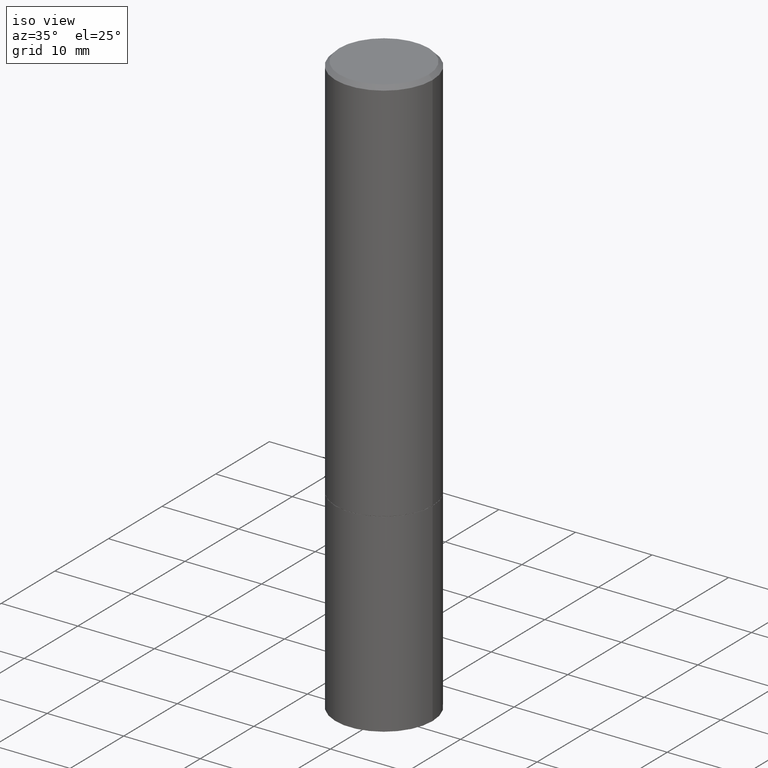
[diagram: clean part render]
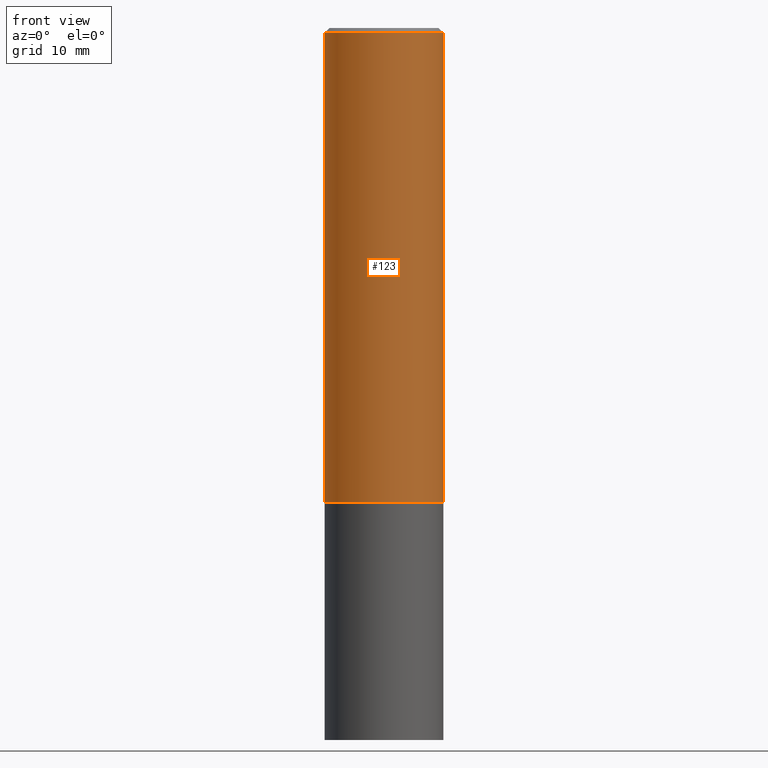
[diagram: tour spotlight — one face highlighted and labeled with its STEP entity id]
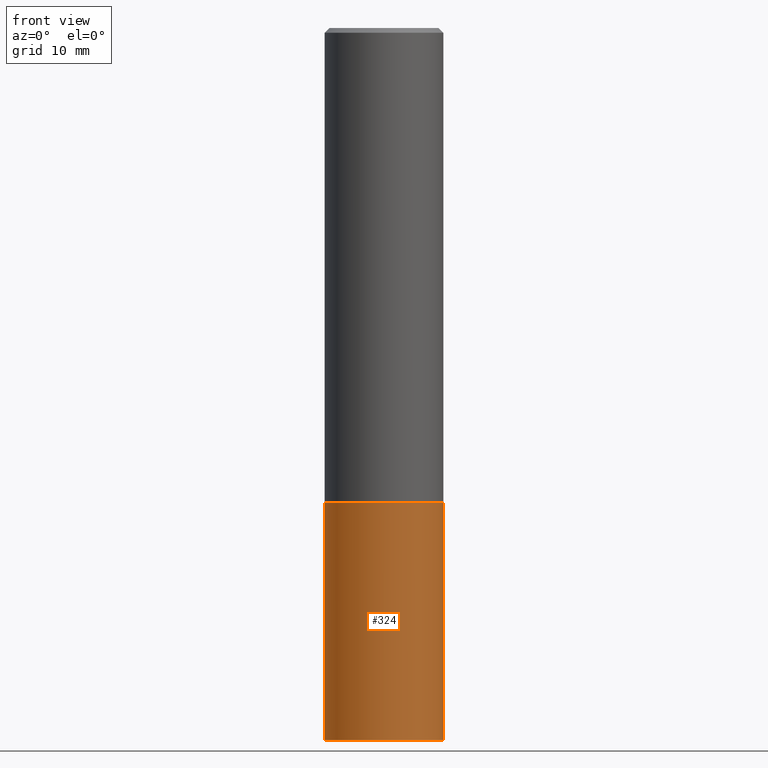
[diagram: tour spotlight — one face highlighted and labeled with its STEP entity id]
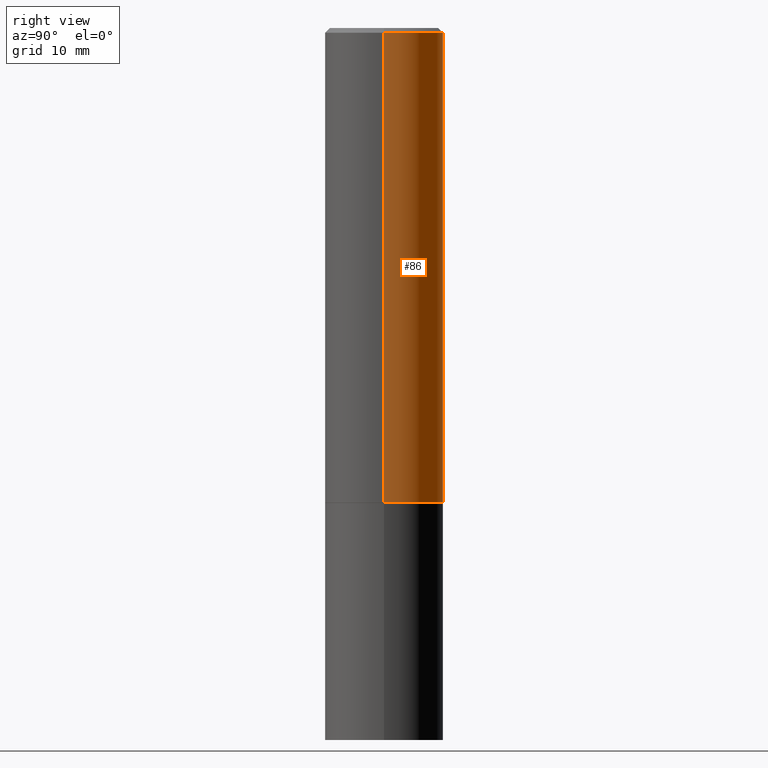
[diagram: tour spotlight — one face highlighted and labeled with its STEP entity id]
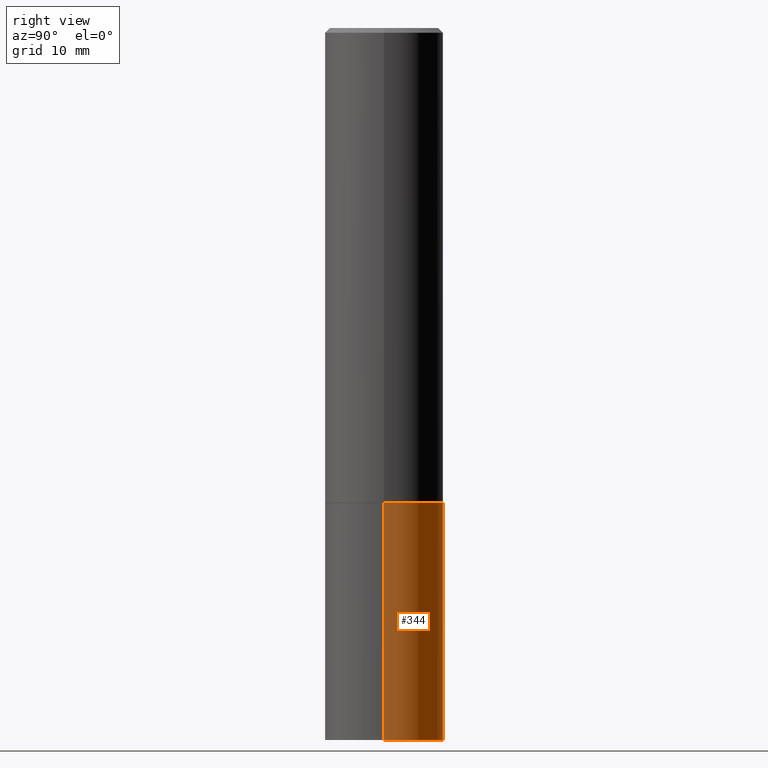
[diagram: tour spotlight — one face highlighted and labeled with its STEP entity id]
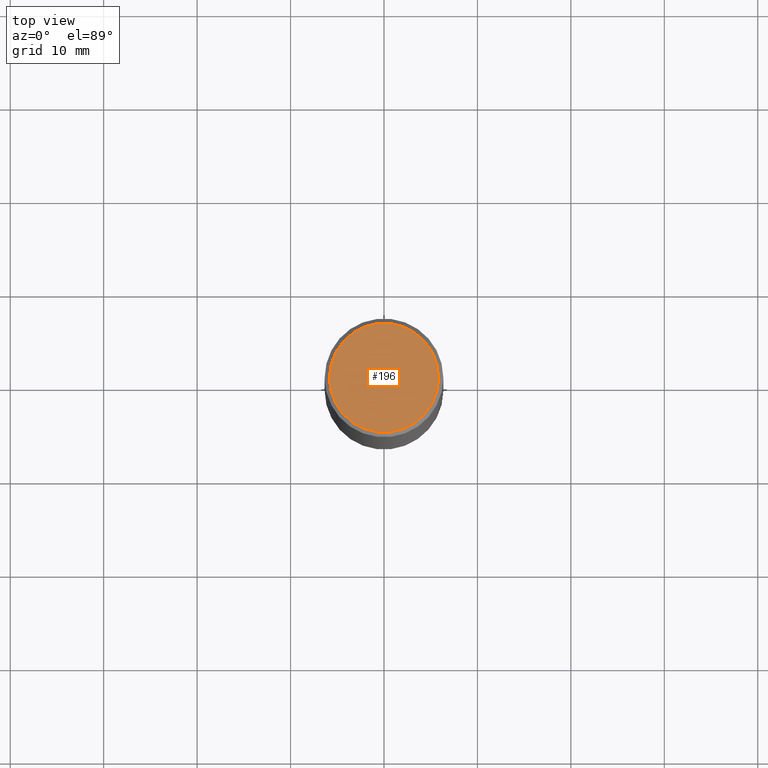
[diagram: tour spotlight — one face highlighted and labeled with its STEP entity id]
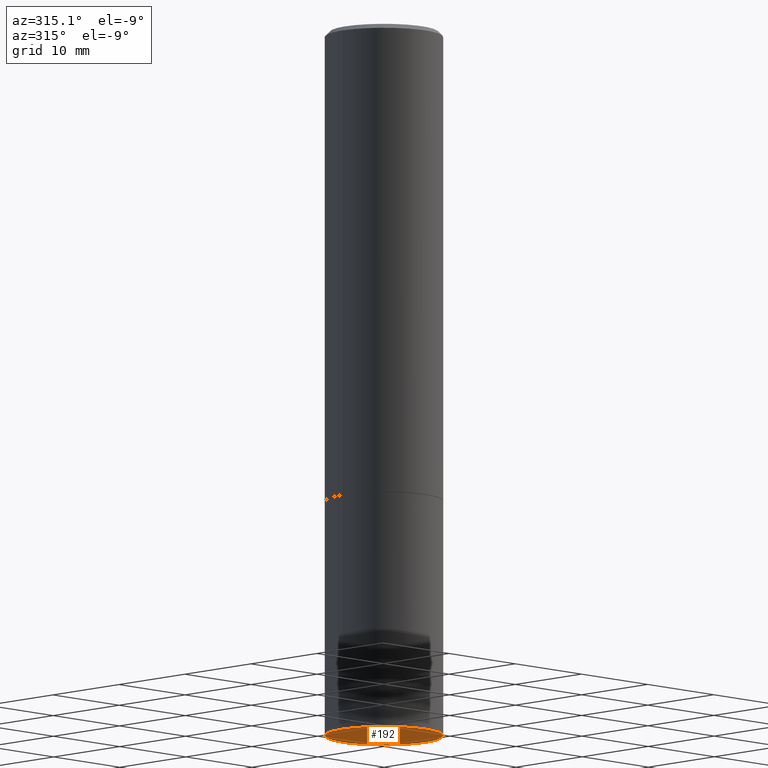
[diagram: tour spotlight — one face highlighted and labeled with its STEP entity id]
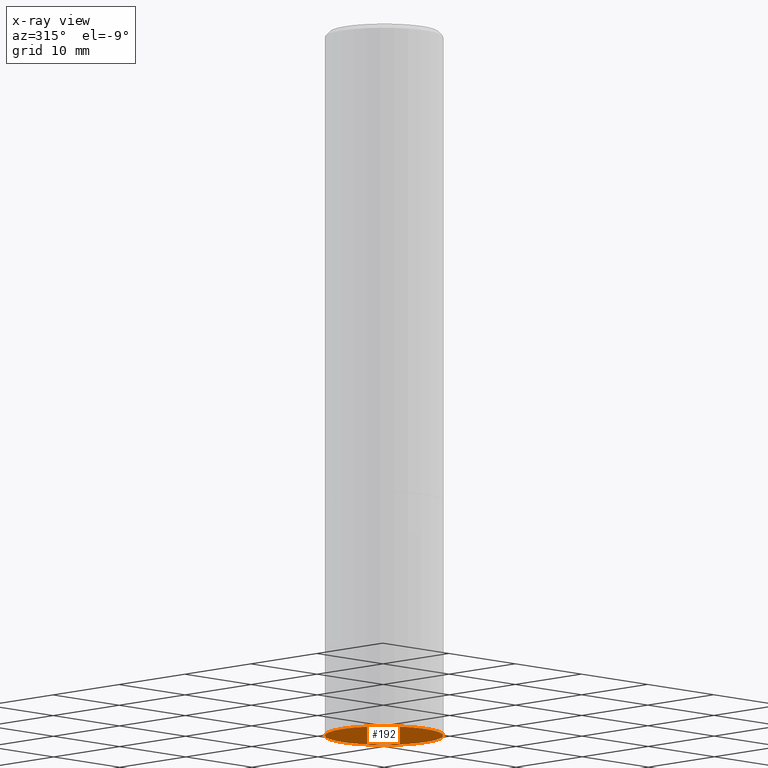
[diagram: x-ray of the same camera — body ghosted, this tour face saturated]
A machine part: a face-by-face anatomy tour. The part has 12 B-rep faces; the first image is the clean iso view, then the 6 largest visible faces are spotlighted one at a time (largest first), each with its STEP entity span.

Face 1 — front view, entity #123. In plain terms, the highlighted cylindrical surface (partial cylindrical patch) has radius 6.35 mm, axis along (-0, 0, 1).
Definition (entity closure, byte-faithful):
#9 = EDGE_CURVE ( 'NONE', #105, #18, #268, .T. ) ;
#14 = ORIENTED_EDGE ( 'NONE', *, *, #143, .F. ) ;
#18 = VERTEX_POINT ( 'NONE', #263 ) ;
#20 = DIRECTION ( 'NONE',  ( -2.445468806185136597E-29, 3.491481338843145583E-15, 1.000000000000000000 ) ) ;
#36 = EDGE_CURVE ( 'NONE', #18, #210, #260, .T. ) ;
#38 = VECTOR ( 'NONE', #364, 39.37007874015748143 ) ;
#44 = CARTESIAN_POINT ( 'NONE',  ( -0.2499999999999998612, 1.776356839400249479E-15, -1.229733772563725745E-29 ) ) ;
#50 = CARTESIAN_POINT ( 'NONE',  ( 4.890937612370287172E-31, -6.982962677686310098E-17, -0.02000000000000005593 ) ) ;
#64 = AXIS2_PLACEMENT_3D ( 'NONE', #88, #233, #280 ) ;
#88 = CARTESIAN_POINT ( 'NONE',  ( 0.000000000000000000, 0.000000000000000000, 0.000000000000000000 ) ) ;
#91 = CIRCLE ( 'NONE', #235, 0.2499999999999997224 ) ;
#105 = VERTEX_POINT ( 'NONE', #200 ) ;
#110 = CARTESIAN_POINT ( 'NONE',  ( 4.888492143564088712E-29, -6.979471196347448158E-15, -1.999000000000000110 ) ) ;
#123 = ADVANCED_FACE ( 'NONE', ( #313 ), #286, .T. ) ;
#129 = EDGE_CURVE ( 'NONE', #105, #329, #257, .T. ) ;
#142 = DIRECTION ( 'NONE',  ( 1.000000000000000000, -6.982962677686266711E-15, 0.000000000000000000 ) ) ;
#143 = EDGE_CURVE ( 'NONE', #329, #210, #91, .T. ) ;
#167 = CARTESIAN_POINT ( 'NONE',  ( 0.2499999999999998612, -1.745740669421565692E-15, 1.219044193948983248E-29 ) ) ;
#173 = DIRECTION ( 'NONE',  ( -2.445468806185136597E-29, 3.491481338843145583E-15, 1.000000000000000000 ) ) ;
#189 = ORIENTED_EDGE ( 'NONE', *, *, #129, .F. ) ;
#200 = CARTESIAN_POINT ( 'NONE',  ( -0.2499999999999999722, -1.748293572161903489E-15, -1.999000000000000110 ) ) ;
#201 = CARTESIAN_POINT ( 'NONE',  ( -0.2499999999999997224, 1.675911042644701605E-15, -0.02000000000000005593 ) ) ;
#210 = VERTEX_POINT ( 'NONE', #339 ) ;
#233 = DIRECTION ( 'NONE',  ( -2.445468806185136597E-29, 3.491481338843145583E-15, 1.000000000000000000 ) ) ;
#235 = AXIS2_PLACEMENT_3D ( 'NONE', #50, #20, #310 ) ;
#249 = DIRECTION ( 'NONE',  ( -2.445468806185136877E-29, 3.491481338843145188E-15, 1.000000000000000000 ) ) ;
#252 = VECTOR ( 'NONE', #249, 39.37007874015748143 ) ;
#257 = LINE ( 'NONE', #44, #252 ) ;
#260 = LINE ( 'NONE', #167, #38 ) ;
#263 = CARTESIAN_POINT ( 'NONE',  ( 0.2500000000000000000, -8.725211865769015625E-15, -1.999000000000000110 ) ) ;
#268 = CIRCLE ( 'NONE', #315, 0.2500000000000000000 ) ;
#280 = DIRECTION ( 'NONE',  ( 1.000000000000000000, -6.982962677686266711E-15, 4.876176775795935793E-29 ) ) ;
#286 = CYLINDRICAL_SURFACE ( 'NONE', #64, 0.2499999999999998612 ) ;
#302 = EDGE_LOOP ( 'NONE', ( #189, #353, #359, #14 ) ) ;
#310 = DIRECTION ( 'NONE',  ( 1.000000000000000000, -6.982962677686266711E-15, 0.000000000000000000 ) ) ;
#313 = FACE_OUTER_BOUND ( 'NONE', #302, .T. ) ;
#315 = AXIS2_PLACEMENT_3D ( 'NONE', #110, #173, #142 ) ;
#329 = VERTEX_POINT ( 'NONE', #201 ) ;
#339 = CARTESIAN_POINT ( 'NONE',  ( 0.2499999999999997224, -1.784954126219744217E-15, -0.02000000000000005593 ) ) ;
#353 = ORIENTED_EDGE ( 'NONE', *, *, #9, .T. ) ;
#359 = ORIENTED_EDGE ( 'NONE', *, *, #36, .T. ) ;
#364 = DIRECTION ( 'NONE',  ( -2.445468806185136877E-29, 3.491481338843145188E-15, 1.000000000000000000 ) ) ;

Face 2 — front view, entity #324. In plain terms, the highlighted cylindrical surface (partial cylindrical patch) has radius 6.35 mm, axis along (-0, 0, 1).
Definition (entity closure, byte-faithful):
#17 = LINE ( 'NONE', #246, #206 ) ;
#22 = CYLINDRICAL_SURFACE ( 'NONE', #149, 0.2500000000000000000 ) ;
#23 = ORIENTED_EDGE ( 'NONE', *, *, #285, .T. ) ;
#28 = DIRECTION ( 'NONE',  ( 1.000000000000000000, -6.982962677686266711E-15, 4.876176775795935793E-29 ) ) ;
#29 = VERTEX_POINT ( 'NONE', #139 ) ;
#35 = DIRECTION ( 'NONE',  ( 1.000000000000000000, -6.982962677686262766E-15, 0.000000000000000000 ) ) ;
#43 = VERTEX_POINT ( 'NONE', #224 ) ;
#47 = DIRECTION ( 'NONE',  ( -2.445468806185136877E-29, 3.491481338843145188E-15, 1.000000000000000000 ) ) ;
#54 = CARTESIAN_POINT ( 'NONE',  ( 0.2500000000000000000, -1.745740669421566678E-15, 1.219044193948983948E-29 ) ) ;
#58 = CARTESIAN_POINT ( 'NONE',  ( 7.336406418555409790E-29, -1.047444401652943635E-14, -3.000000000000000444 ) ) ;
#67 = CIRCLE ( 'NONE', #273, 0.2500000000000000000 ) ;
#69 = ORIENTED_EDGE ( 'NONE', *, *, #346, .T. ) ;
#113 = VECTOR ( 'NONE', #47, 39.37007874015748143 ) ;
#115 = CARTESIAN_POINT ( 'NONE',  ( 0.000000000000000000, 0.000000000000000000, 0.000000000000000000 ) ) ;
#134 = VERTEX_POINT ( 'NONE', #222 ) ;
#139 = CARTESIAN_POINT ( 'NONE',  ( -0.2500000000000000000, -6.952346507707613689E-15, -3.000000000000000444 ) ) ;
#149 = AXIS2_PLACEMENT_3D ( 'NONE', #115, #197, #28 ) ;
#154 = CARTESIAN_POINT ( 'NONE',  ( 4.890937612370273754E-29, -6.982962677686291954E-15, -2.000000000000000444 ) ) ;
#161 = DIRECTION ( 'NONE',  ( -2.445468806185136597E-29, 3.491481338843145583E-15, 1.000000000000000000 ) ) ;
#185 = CARTESIAN_POINT ( 'NONE',  ( -0.2500000000000000000, -6.952346507707613689E-15, -2.000000000000000444 ) ) ;
#197 = DIRECTION ( 'NONE',  ( -2.445468806185136597E-29, 3.491481338843145583E-15, 1.000000000000000000 ) ) ;
#206 = VECTOR ( 'NONE', #356, 39.37007874015748143 ) ;
#213 = LINE ( 'NONE', #54, #113 ) ;
#222 = CARTESIAN_POINT ( 'NONE',  ( 0.2500000000000000000, -8.728703347107858632E-15, -2.000000000000000444 ) ) ;
#224 = CARTESIAN_POINT ( 'NONE',  ( 0.2500000000000000000, -1.222018468595100303E-14, -3.000000000000000444 ) ) ;
#231 = EDGE_CURVE ( 'NONE', #271, #134, #67, .T. ) ;
#234 = DIRECTION ( 'NONE',  ( -2.445468806185136597E-29, 3.491481338843145583E-15, 1.000000000000000000 ) ) ;
#239 = AXIS2_PLACEMENT_3D ( 'NONE', #58, #234, #35 ) ;
#246 = CARTESIAN_POINT ( 'NONE',  ( -0.2500000000000000000, 1.776356839400250465E-15, -1.229733772563726445E-29 ) ) ;
#271 = VERTEX_POINT ( 'NONE', #185 ) ;
#273 = AXIS2_PLACEMENT_3D ( 'NONE', #154, #161, #360 ) ;
#277 = FACE_OUTER_BOUND ( 'NONE', #300, .T. ) ;
#285 = EDGE_CURVE ( 'NONE', #43, #134, #213, .T. ) ;
#294 = CIRCLE ( 'NONE', #239, 0.2500000000000000000 ) ;
#300 = EDGE_LOOP ( 'NONE', ( #309, #69, #23, #332 ) ) ;
#308 = EDGE_CURVE ( 'NONE', #29, #271, #17, .T. ) ;
#309 = ORIENTED_EDGE ( 'NONE', *, *, #308, .F. ) ;
#324 = ADVANCED_FACE ( 'NONE', ( #277 ), #22, .T. ) ;
#332 = ORIENTED_EDGE ( 'NONE', *, *, #231, .F. ) ;
#346 = EDGE_CURVE ( 'NONE', #29, #43, #294, .T. ) ;
#356 = DIRECTION ( 'NONE',  ( -2.445468806185136877E-29, 3.491481338843145188E-15, 1.000000000000000000 ) ) ;
#360 = DIRECTION ( 'NONE',  ( 1.000000000000000000, -6.982962677686266711E-15, 0.000000000000000000 ) ) ;

Face 3 — right view, entity #86. In plain terms, the highlighted cylindrical surface (partial cylindrical patch) has radius 6.35 mm, axis along (-0, 0, 1).
Definition (entity closure, byte-faithful):
#10 = AXIS2_PLACEMENT_3D ( 'NONE', #226, #342, #59 ) ;
#18 = VERTEX_POINT ( 'NONE', #263 ) ;
#21 = ORIENTED_EDGE ( 'NONE', *, *, #96, .F. ) ;
#36 = EDGE_CURVE ( 'NONE', #18, #210, #260, .T. ) ;
#38 = VECTOR ( 'NONE', #364, 39.37007874015748143 ) ;
#44 = CARTESIAN_POINT ( 'NONE',  ( -0.2499999999999998612, 1.776356839400249479E-15, -1.229733772563725745E-29 ) ) ;
#55 = DIRECTION ( 'NONE',  ( 1.000000000000000000, -6.982962677686266711E-15, 0.000000000000000000 ) ) ;
#59 = DIRECTION ( 'NONE',  ( 1.000000000000000000, -6.982962677686266711E-15, 0.000000000000000000 ) ) ;
#86 = ADVANCED_FACE ( 'NONE', ( #289 ), #340, .T. ) ;
#96 = EDGE_CURVE ( 'NONE', #210, #329, #98, .T. ) ;
#98 = CIRCLE ( 'NONE', #181, 0.2499999999999997224 ) ;
#100 = EDGE_CURVE ( 'NONE', #18, #105, #148, .T. ) ;
#102 = EDGE_LOOP ( 'NONE', ( #184, #362, #21, #131 ) ) ;
#105 = VERTEX_POINT ( 'NONE', #200 ) ;
#129 = EDGE_CURVE ( 'NONE', #105, #329, #257, .T. ) ;
#131 = ORIENTED_EDGE ( 'NONE', *, *, #36, .F. ) ;
#148 = CIRCLE ( 'NONE', #10, 0.2500000000000000000 ) ;
#167 = CARTESIAN_POINT ( 'NONE',  ( 0.2499999999999998612, -1.745740669421565692E-15, 1.219044193948983248E-29 ) ) ;
#170 = DIRECTION ( 'NONE',  ( -2.445468806185136597E-29, 3.491481338843145583E-15, 1.000000000000000000 ) ) ;
#181 = AXIS2_PLACEMENT_3D ( 'NONE', #365, #284, #55 ) ;
#184 = ORIENTED_EDGE ( 'NONE', *, *, #100, .T. ) ;
#200 = CARTESIAN_POINT ( 'NONE',  ( -0.2499999999999999722, -1.748293572161903489E-15, -1.999000000000000110 ) ) ;
#201 = CARTESIAN_POINT ( 'NONE',  ( -0.2499999999999997224, 1.675911042644701605E-15, -0.02000000000000005593 ) ) ;
#210 = VERTEX_POINT ( 'NONE', #339 ) ;
#226 = CARTESIAN_POINT ( 'NONE',  ( 4.888492143564088712E-29, -6.979471196347448158E-15, -1.999000000000000110 ) ) ;
#249 = DIRECTION ( 'NONE',  ( -2.445468806185136877E-29, 3.491481338843145188E-15, 1.000000000000000000 ) ) ;
#252 = VECTOR ( 'NONE', #249, 39.37007874015748143 ) ;
#257 = LINE ( 'NONE', #44, #252 ) ;
#260 = LINE ( 'NONE', #167, #38 ) ;
#263 = CARTESIAN_POINT ( 'NONE',  ( 0.2500000000000000000, -8.725211865769015625E-15, -1.999000000000000110 ) ) ;
#284 = DIRECTION ( 'NONE',  ( -2.445468806185136597E-29, 3.491481338843145583E-15, 1.000000000000000000 ) ) ;
#289 = FACE_OUTER_BOUND ( 'NONE', #102, .T. ) ;
#320 = AXIS2_PLACEMENT_3D ( 'NONE', #347, #170, #338 ) ;
#329 = VERTEX_POINT ( 'NONE', #201 ) ;
#338 = DIRECTION ( 'NONE',  ( 1.000000000000000000, -6.982962677686266711E-15, 4.876176775795935793E-29 ) ) ;
#339 = CARTESIAN_POINT ( 'NONE',  ( 0.2499999999999997224, -1.784954126219744217E-15, -0.02000000000000005593 ) ) ;
#340 = CYLINDRICAL_SURFACE ( 'NONE', #320, 0.2499999999999998612 ) ;
#342 = DIRECTION ( 'NONE',  ( -2.445468806185136597E-29, 3.491481338843145583E-15, 1.000000000000000000 ) ) ;
#347 = CARTESIAN_POINT ( 'NONE',  ( 0.000000000000000000, 0.000000000000000000, 0.000000000000000000 ) ) ;
#362 = ORIENTED_EDGE ( 'NONE', *, *, #129, .T. ) ;
#364 = DIRECTION ( 'NONE',  ( -2.445468806185136877E-29, 3.491481338843145188E-15, 1.000000000000000000 ) ) ;
#365 = CARTESIAN_POINT ( 'NONE',  ( 4.890937612370287172E-31, -6.982962677686310098E-17, -0.02000000000000005593 ) ) ;

Face 4 — right view, entity #344. In plain terms, the highlighted cylindrical surface (partial cylindrical patch) has radius 6.35 mm, axis along (-0, 0, 1).
Definition (entity closure, byte-faithful):
#3 = FACE_OUTER_BOUND ( 'NONE', #57, .T. ) ;
#17 = LINE ( 'NONE', #246, #206 ) ;
#26 = CIRCLE ( 'NONE', #158, 0.2500000000000000000 ) ;
#29 = VERTEX_POINT ( 'NONE', #139 ) ;
#30 = CYLINDRICAL_SURFACE ( 'NONE', #261, 0.2500000000000000000 ) ;
#43 = VERTEX_POINT ( 'NONE', #224 ) ;
#47 = DIRECTION ( 'NONE',  ( -2.445468806185136877E-29, 3.491481338843145188E-15, 1.000000000000000000 ) ) ;
#48 = ORIENTED_EDGE ( 'NONE', *, *, #220, .T. ) ;
#51 = ORIENTED_EDGE ( 'NONE', *, *, #285, .F. ) ;
#54 = CARTESIAN_POINT ( 'NONE',  ( 0.2500000000000000000, -1.745740669421566678E-15, 1.219044193948983948E-29 ) ) ;
#57 = EDGE_LOOP ( 'NONE', ( #48, #274, #221, #51 ) ) ;
#79 = CARTESIAN_POINT ( 'NONE',  ( 4.890937612370273754E-29, -6.982962677686291954E-15, -2.000000000000000444 ) ) ;
#113 = VECTOR ( 'NONE', #47, 39.37007874015748143 ) ;
#134 = VERTEX_POINT ( 'NONE', #222 ) ;
#139 = CARTESIAN_POINT ( 'NONE',  ( -0.2500000000000000000, -6.952346507707613689E-15, -3.000000000000000444 ) ) ;
#158 = AXIS2_PLACEMENT_3D ( 'NONE', #251, #301, #275 ) ;
#163 = DIRECTION ( 'NONE',  ( 1.000000000000000000, -6.982962677686266711E-15, 0.000000000000000000 ) ) ;
#185 = CARTESIAN_POINT ( 'NONE',  ( -0.2500000000000000000, -6.952346507707613689E-15, -2.000000000000000444 ) ) ;
#206 = VECTOR ( 'NONE', #356, 39.37007874015748143 ) ;
#209 = AXIS2_PLACEMENT_3D ( 'NONE', #79, #312, #163 ) ;
#213 = LINE ( 'NONE', #54, #113 ) ;
#220 = EDGE_CURVE ( 'NONE', #43, #29, #26, .T. ) ;
#221 = ORIENTED_EDGE ( 'NONE', *, *, #237, .F. ) ;
#222 = CARTESIAN_POINT ( 'NONE',  ( 0.2500000000000000000, -8.728703347107858632E-15, -2.000000000000000444 ) ) ;
#224 = CARTESIAN_POINT ( 'NONE',  ( 0.2500000000000000000, -1.222018468595100303E-14, -3.000000000000000444 ) ) ;
#232 = DIRECTION ( 'NONE',  ( -2.445468806185136597E-29, 3.491481338843145583E-15, 1.000000000000000000 ) ) ;
#237 = EDGE_CURVE ( 'NONE', #134, #271, #325, .T. ) ;
#246 = CARTESIAN_POINT ( 'NONE',  ( -0.2500000000000000000, 1.776356839400250465E-15, -1.229733772563726445E-29 ) ) ;
#251 = CARTESIAN_POINT ( 'NONE',  ( 7.336406418555409790E-29, -1.047444401652943635E-14, -3.000000000000000444 ) ) ;
#261 = AXIS2_PLACEMENT_3D ( 'NONE', #287, #232, #314 ) ;
#271 = VERTEX_POINT ( 'NONE', #185 ) ;
#274 = ORIENTED_EDGE ( 'NONE', *, *, #308, .T. ) ;
#275 = DIRECTION ( 'NONE',  ( 1.000000000000000000, -6.982962677686262766E-15, 0.000000000000000000 ) ) ;
#285 = EDGE_CURVE ( 'NONE', #43, #134, #213, .T. ) ;
#287 = CARTESIAN_POINT ( 'NONE',  ( 0.000000000000000000, 0.000000000000000000, 0.000000000000000000 ) ) ;
#301 = DIRECTION ( 'NONE',  ( -2.445468806185136597E-29, 3.491481338843145583E-15, 1.000000000000000000 ) ) ;
#308 = EDGE_CURVE ( 'NONE', #29, #271, #17, .T. ) ;
#312 = DIRECTION ( 'NONE',  ( -2.445468806185136597E-29, 3.491481338843145583E-15, 1.000000000000000000 ) ) ;
#314 = DIRECTION ( 'NONE',  ( 1.000000000000000000, -6.982962677686266711E-15, 4.876176775795935793E-29 ) ) ;
#325 = CIRCLE ( 'NONE', #209, 0.2500000000000000000 ) ;
#344 = ADVANCED_FACE ( 'NONE', ( #3 ), #30, .T. ) ;
#356 = DIRECTION ( 'NONE',  ( -2.445468806185136877E-29, 3.491481338843145188E-15, 1.000000000000000000 ) ) ;

Face 5 — top view, entity #196. In plain terms, the highlighted planar face has unit normal (0, -0, -1).
Definition (entity closure, byte-faithful):
#15 = CARTESIAN_POINT ( 'NONE',  ( 0.2299999999999997047, -1.681434332853597236E-15, 4.268512490111905999E-18 ) ) ;
#16 = ORIENTED_EDGE ( 'NONE', *, *, #103, .T. ) ;
#24 = EDGE_CURVE ( 'NONE', #269, #311, #121, .T. ) ;
#27 = DIRECTION ( 'NONE',  ( 1.000000000000000000, -6.982962677686266711E-15, 4.876225828469315047E-29 ) ) ;
#32 = AXIS2_PLACEMENT_3D ( 'NONE', #33, #85, #27 ) ;
#33 = CARTESIAN_POINT ( 'NONE',  ( -1.043851414335219820E-46, 1.490343170380447200E-32, 4.268512490100411279E-18 ) ) ;
#71 = ORIENTED_EDGE ( 'NONE', *, *, #24, .T. ) ;
#81 = CARTESIAN_POINT ( 'NONE',  ( 1.606081415867839095E-15, 0.2299999999999997047, -8.009064516888722925E-16 ) ) ;
#85 = DIRECTION ( 'NONE',  ( -2.445468806185136597E-29, 3.491481338843145583E-15, 1.000000000000000000 ) ) ;
#89 = DIRECTION ( 'NONE',  ( -2.445468806185136597E-29, 3.491481338843145583E-15, 1.000000000000000000 ) ) ;
#99 = PLANE ( 'NONE',  #118 ) ;
#103 = EDGE_CURVE ( 'NONE', #311, #269, #204, .T. ) ;
#118 = AXIS2_PLACEMENT_3D ( 'NONE', #81, #270, #305 ) ;
#121 = CIRCLE ( 'NONE', #351, 0.2299999999999997047 ) ;
#136 = FACE_OUTER_BOUND ( 'NONE', #336, .T. ) ;
#164 = CARTESIAN_POINT ( 'NONE',  ( -1.043851414335219820E-46, 1.490343170380447200E-32, 4.268512490100411279E-18 ) ) ;
#195 = DIRECTION ( 'NONE',  ( 1.000000000000000000, -6.982962677686266711E-15, 4.876225828469315047E-29 ) ) ;
#196 = ADVANCED_FACE ( 'NONE', ( #136 ), #99, .F. ) ;
#204 = CIRCLE ( 'NONE', #32, 0.2299999999999997047 ) ;
#269 = VERTEX_POINT ( 'NONE', #15 ) ;
#270 = DIRECTION ( 'NONE',  ( 2.438088387897960049E-29, -3.491481338843145188E-15, -1.000000000000000000 ) ) ;
#305 = DIRECTION ( 'NONE',  ( -1.000000000000000000, 6.982962677686265922E-15, -4.876176775795935793E-29 ) ) ;
#311 = VERTEX_POINT ( 'NONE', #331 ) ;
#331 = CARTESIAN_POINT ( 'NONE',  ( -0.2299999999999997047, 1.640996229256270547E-15, 4.268512490089056766E-18 ) ) ;
#336 = EDGE_LOOP ( 'NONE', ( #16, #71 ) ) ;
#351 = AXIS2_PLACEMENT_3D ( 'NONE', #164, #89, #195 ) ;

Face 6 — auxiliary view, entity #192. An x-ray twin of the same camera follows (body ghosted, this face saturated) — the face is partly hidden behind the body. In plain terms, the highlighted planar face has unit normal (0, -0, -1).
Definition (entity closure, byte-faithful):
#26 = CIRCLE ( 'NONE', #158, 0.2500000000000000000 ) ;
#29 = VERTEX_POINT ( 'NONE', #139 ) ;
#35 = DIRECTION ( 'NONE',  ( 1.000000000000000000, -6.982962677686262766E-15, 0.000000000000000000 ) ) ;
#43 = VERTEX_POINT ( 'NONE', #224 ) ;
#58 = CARTESIAN_POINT ( 'NONE',  ( 7.336406418555409790E-29, -1.047444401652943635E-14, -3.000000000000000444 ) ) ;
#101 = PLANE ( 'NONE',  #361 ) ;
#106 = FACE_OUTER_BOUND ( 'NONE', #212, .T. ) ;
#107 = ORIENTED_EDGE ( 'NONE', *, *, #220, .F. ) ;
#126 = DIRECTION ( 'NONE',  ( -1.000000000000000000, 6.982962677686265922E-15, -4.876176775795935793E-29 ) ) ;
#139 = CARTESIAN_POINT ( 'NONE',  ( -0.2500000000000000000, -6.952346507707613689E-15, -3.000000000000000444 ) ) ;
#158 = AXIS2_PLACEMENT_3D ( 'NONE', #251, #301, #275 ) ;
#182 = ORIENTED_EDGE ( 'NONE', *, *, #346, .F. ) ;
#192 = ADVANCED_FACE ( 'NONE', ( #106 ), #101, .T. ) ;
#212 = EDGE_LOOP ( 'NONE', ( #107, #182 ) ) ;
#220 = EDGE_CURVE ( 'NONE', #43, #29, #26, .T. ) ;
#224 = CARTESIAN_POINT ( 'NONE',  ( 0.2500000000000000000, -1.222018468595100303E-14, -3.000000000000000444 ) ) ;
#234 = DIRECTION ( 'NONE',  ( -2.445468806185136597E-29, 3.491481338843145583E-15, 1.000000000000000000 ) ) ;
#239 = AXIS2_PLACEMENT_3D ( 'NONE', #58, #234, #35 ) ;
#251 = CARTESIAN_POINT ( 'NONE',  ( 7.336406418555409790E-29, -1.047444401652943635E-14, -3.000000000000000444 ) ) ;
#275 = DIRECTION ( 'NONE',  ( 1.000000000000000000, -6.982962677686262766E-15, 0.000000000000000000 ) ) ;
#294 = CIRCLE ( 'NONE', #239, 0.2500000000000000000 ) ;
#301 = DIRECTION ( 'NONE',  ( -2.445468806185136597E-29, 3.491481338843145583E-15, 1.000000000000000000 ) ) ;
#346 = EDGE_CURVE ( 'NONE', #29, #43, #294, .T. ) ;
#358 = DIRECTION ( 'NONE',  ( 2.438088387897960049E-29, -3.491481338843145188E-15, -1.000000000000000000 ) ) ;
#361 = AXIS2_PLACEMENT_3D ( 'NONE', #363, #358, #126 ) ;
#363 = CARTESIAN_POINT ( 'NONE',  ( 1.745740669421639647E-15, 0.2499999999999895084, -3.000000000000001332 ) ) ;